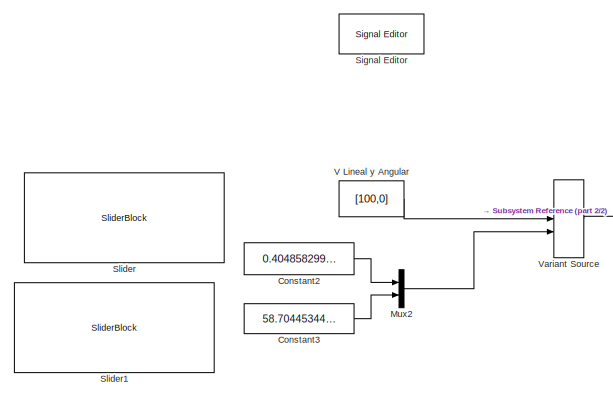
[diagram: root canvas - part 1/2, left side, full height]
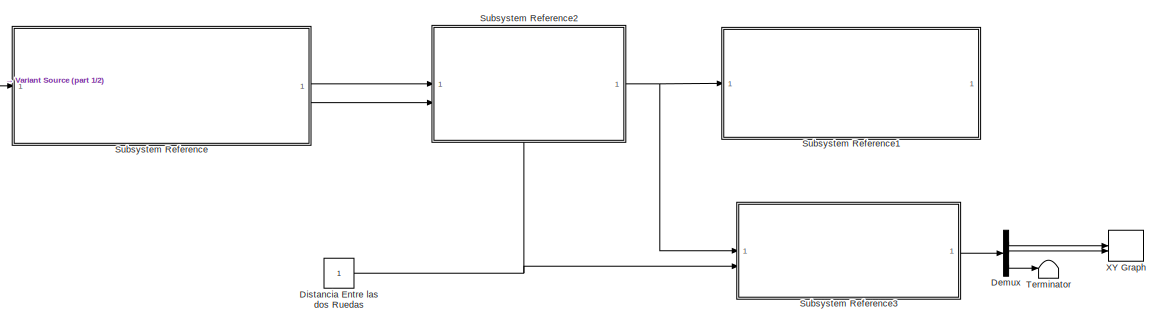
[diagram: root canvas - part 2/2, middle right region]
MODEL slx_98eb0a005b3e
KIND model
CONFIG AbsTol = auto
CONFIG EnableMultiTasking = on
CONFIG FixedStep = auto
CONFIG MaxStep = auto
CONFIG MinStep = auto
CONFIG RelTol = 1e-3
CONFIG SampleTimeConstraint = Unconstrained
CONFIG SolverName = FixedStepAuto
CONFIG StartTime = 0.0
CONFIG StopTime = inf
BLOCK [Constant] Constant2
  Value = 0.4048582995951335
BLOCK [Constant] Constant3
  Value = 58.70445344129556
BLOCK [Demux] Demux
  Outputs = 3
BLOCK [Constant] Distancia Entre las dos Ruedas
BLOCK [Mux] Mux2
  DisplayOption = bar
  Inputs = 2
BLOCK [Reference] Signal Editor  REF=SignalEditorBlockLib/Signal Editor
  LibrarySourceBlock = simulink/Sources/Signal Editor
  SourceBlock = SignalEditorBlockLib/Signal Editor
  SourceType = SignalEditor
  UserDataPersistent = on
BLOCK [SliderBlock] Slider
  ScaleMin = -100
BLOCK [SliderBlock] Slider1
  ScaleMin = -100
BLOCK [SubSystem] Subsystem Reference
  ReferencedSubsystem = Sistema_Anticolision
BLOCK [SubSystem] Subsystem Reference1
  ReferencedSubsystem = Motores
BLOCK [SubSystem] Subsystem Reference2
  PortSchema = {"entries":[{"content":{"sides":[{"content":{"connectorIds":["In1","In2"]},"type":"ConnectorPlacement.EquallySpacedRectSide","uuid":"296ec3ce-a2cd-47ea-b6d2-93e60c3d408c"},{"content":{"connectorIds":["Out1"],"side":"RIGHT"},"type":"ConnectorPlacement.EquallySpacedRectSide","uuid":"4b69a479-ec69-4494-a3b5-f93cec5223a5"},{"content":{"side":"TOP"},"type":"ConnectorPlacement.EquallySpacedRectSide","uu...<+377ch>
  ReferencedSubsystem = Control_Velocidad
BLOCK [SubSystem] Subsystem Reference3
  ReferencedSubsystem = Odometria
BLOCK [Terminator] Terminator
BLOCK [Constant] V Lineal y Angular
  Value = [100,0]
BLOCK [VariantSource] Variant Source
  VariantControlMode = sim codegen switching
BLOCK [Record] XY Graph
  CompatibilityTag = XY
  FileSettingsInternal = {"entries":[{"content":{"excelSettings":{"content":{},"type":"Streamout.ExcelSettings"}},"type":"Streamout.FileSettingStorage","uuid":""}],"packageUris":["http:\/\/schema.mathworks.com\/mf0\/streamout_blocks\/R2020a"],"version":"1.0"}
  Layout = [1 1]
  SignalsInternal = {"entries":[{"content":{"signals":[{"content":{"blockPath":[],"dimensions":[1],"domain":"","lineColor":"#a2142f","plots":[ 1 ],"port":1,"signalID":1,"signalName":"XY Graph:1"},"type":"RecordBlkView.Signal","uuid":""},{"content":{"blockPath":[],"dimensions":[1],"domain":"","lineColor":"#139fff","plots":[ 1 ],"port":2,"signalID":2,"signalName":"XY Graph:2"},"type":"RecordBlkView.Signal","uuid":""}]}...<+144ch>
  VisualizationBindings = {"xyplotplugin":{"info":[{"series":[{"bindingParametersList":[{"parameter":"X-Axis","signalID":1,"signalName":"XY Graph:1"},{"parameter":"Y-Axis","signalID":2,"signalName":"XY Graph:2"}],"seriesID":0}],"subplotID":1}]}}
LINE Constant2:1 -> Mux2:1
LINE Constant3:1 -> Mux2:2
LINE Demux:1 -> XY Graph:1
LINE Demux:2 -> XY Graph:2
LINE Demux:3 -> Terminator:1
NET Distancia Entre las dos Ruedas:1 -> Subsystem Reference2:3, Subsystem Reference3:2
LINE Mux2:1 -> Variant Source:2
NET Subsystem Reference2:1 -> Subsystem Reference1:1, Subsystem Reference3:1
LINE Subsystem Reference3:1 -> Demux:1
LINE Subsystem Reference:1 -> Subsystem Reference2:1
LINE Subsystem Reference:2 -> Subsystem Reference2:2
LINE V Lineal y Angular:1 -> Variant Source:1
LINE Variant Source:1 -> Subsystem Reference:1
note: NET lines group one-source signal fan-out (src -> all destinations, sorted); 1:1 wires keep LINE
